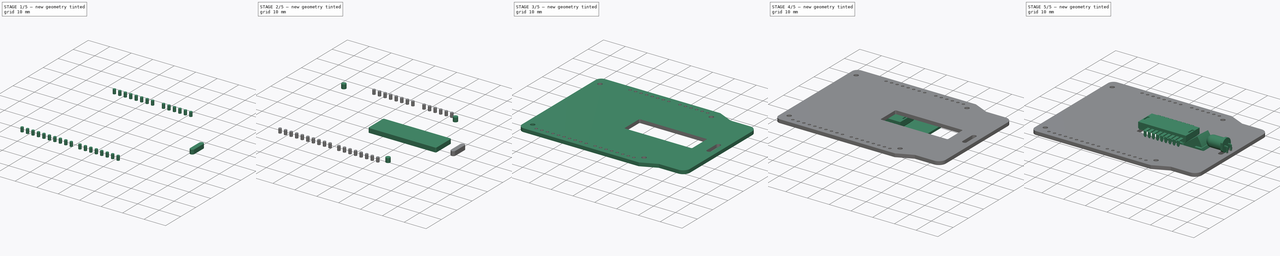
[diagram: build sequence overview — one tinted view per stage of 5, left to right]
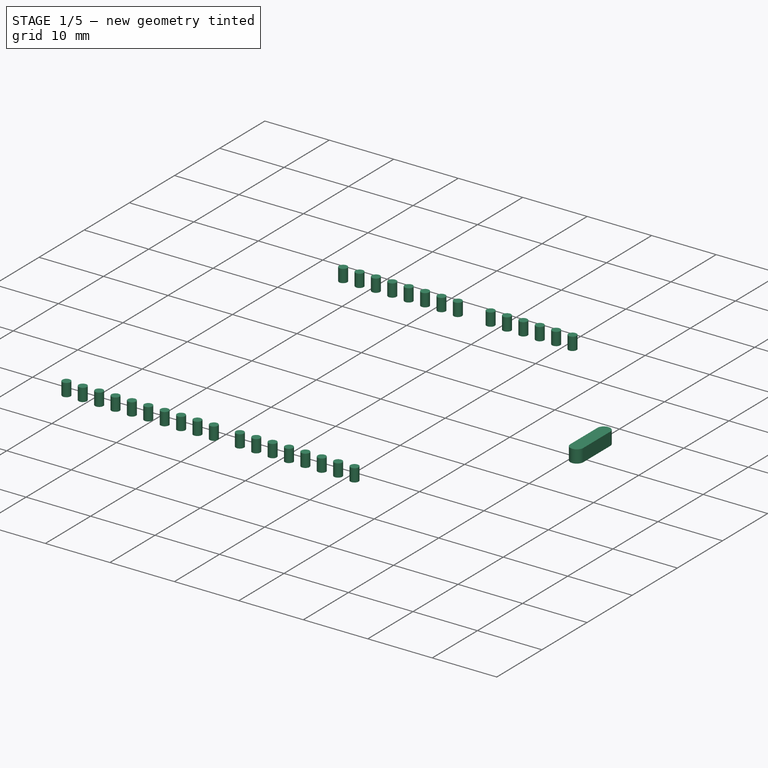
[diagram: stage 1 of 5 — iso view after this stage's code; geometry added in this stage tinted green]
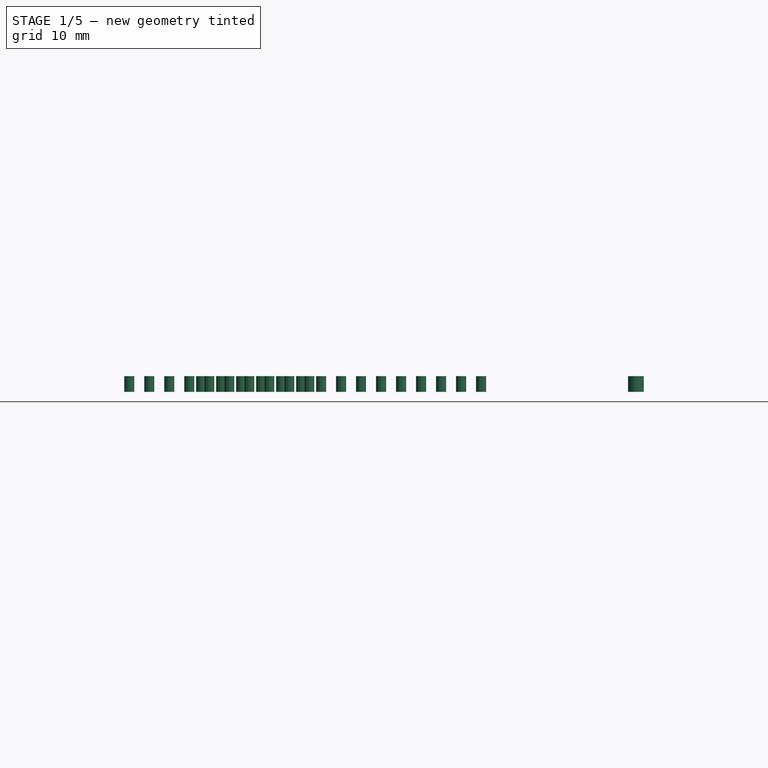
[diagram: stage 1 of 5 — front view after this stage's code; geometry added in this stage tinted green]
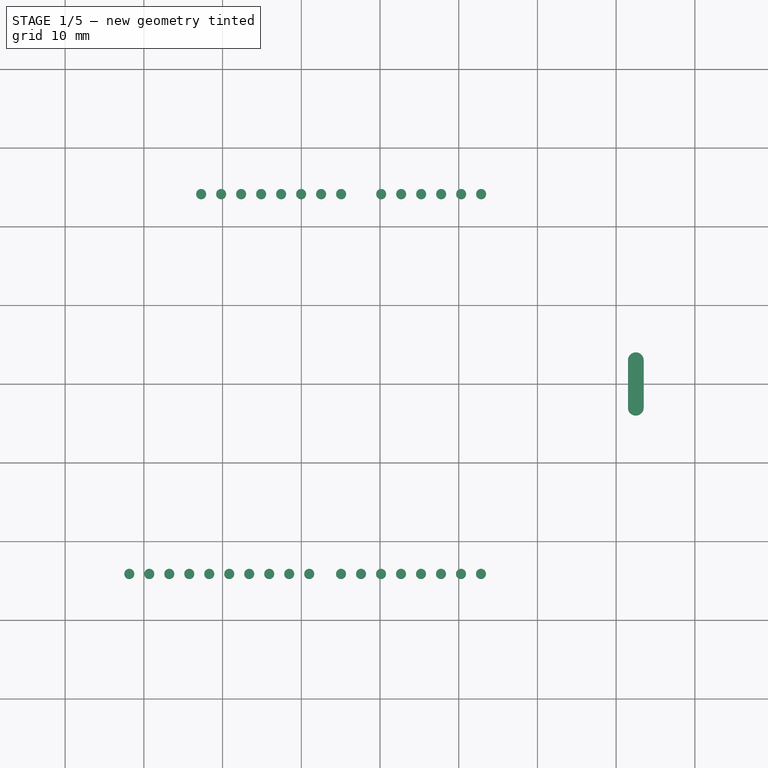
[diagram: stage 1 of 5 — top view after this stage's code; geometry added in this stage tinted green]
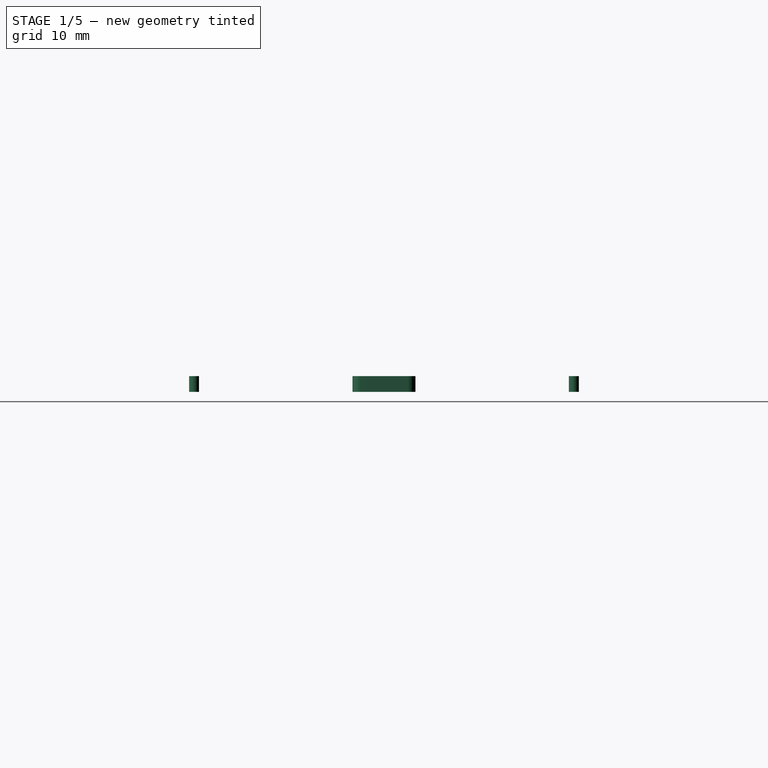
[diagram: stage 1 of 5 — right view after this stage's code; geometry added in this stage tinted green]
FCSTD DOCUMENT  (FreeCAD 0.14R3702 (Git))
Label: db01
License: CC-BY 3.0
LicenseURL: http://creativecommons.org/licenses/by/3.0/
objects: Part::Extrusion×12, Sketcher::SketchObject×11, Part::Compound×6, Part::Feature×5, Part::Cut×3, Part::MultiFuse×3
note: 40 computed .brp shape members not serialized (recipe doc carries the construction recipe); baked Part::Feature solids carry a one-line shape summary decoded from their .brp

FEATURE [Part::Extrusion] Extrude008
  Base = -> Sketch006
  Dir = (0,0,2)
  Solid = true
FEATURE [Part::Extrusion] Extrude009
  Base = -> Sketch007
  Dir = (0,0,2)
  Solid = true
FEATURE [Part::Extrusion] Extrude010
  Base = -> Sketch008
  Dir = (0,0,2)
  Solid = true
FEATURE [Part::Extrusion] Extrude011
  Base = -> Sketch009
  Dir = (0,0,2)
  Solid = true
FEATURE [Part::Extrusion] Extrude012
  Base = -> Sketch011
  Dir = (0,0,2)
  Solid = true
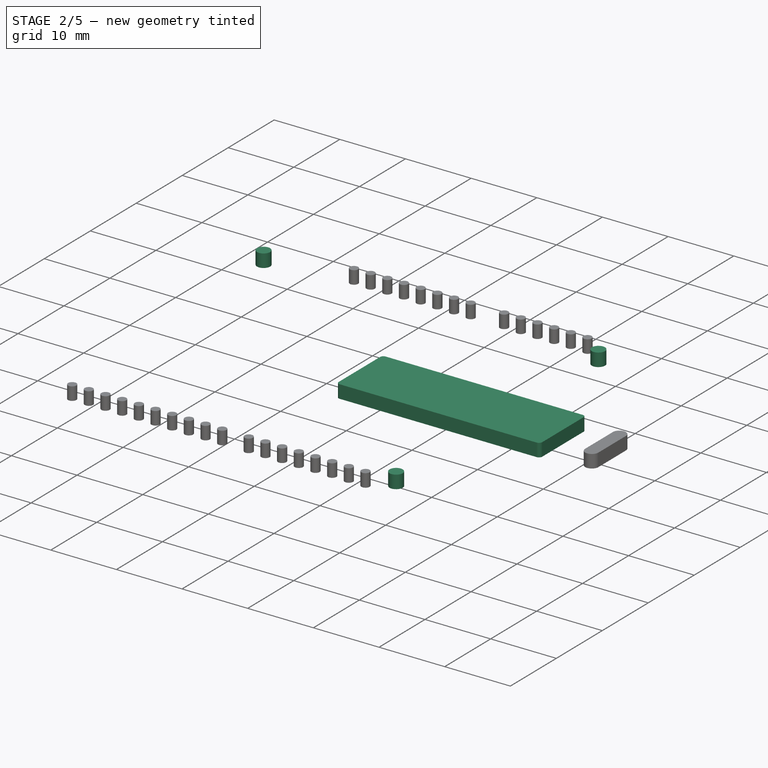
[diagram: stage 2 of 5 — iso view after this stage's code; geometry added in this stage tinted green]
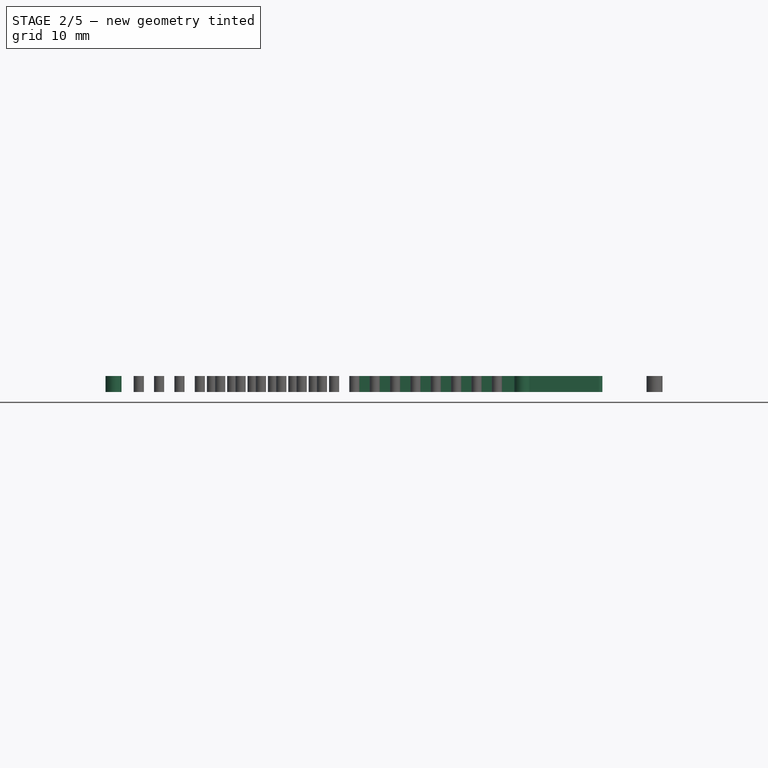
[diagram: stage 2 of 5 — front view after this stage's code; geometry added in this stage tinted green]
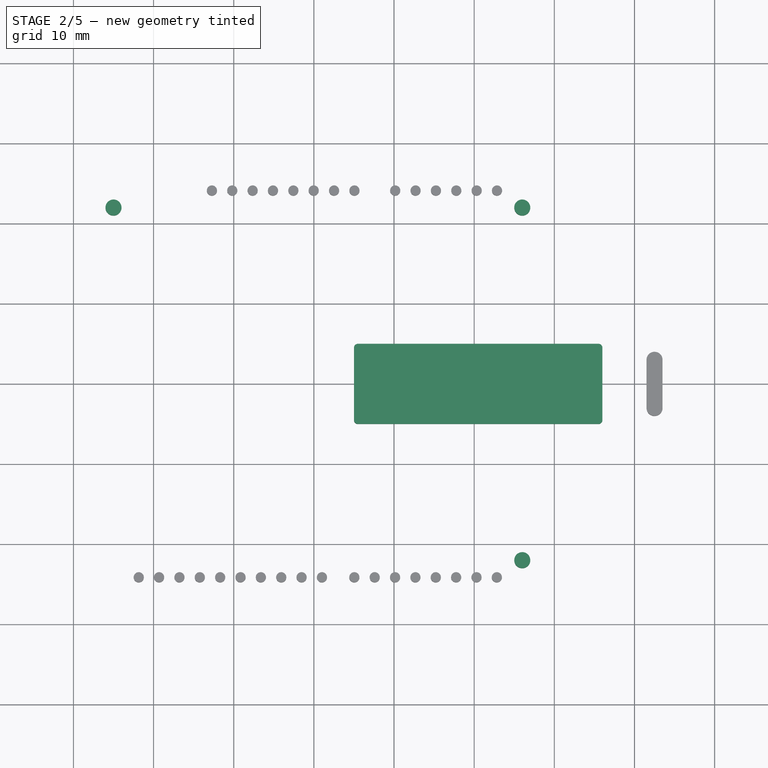
[diagram: stage 2 of 5 — top view after this stage's code; geometry added in this stage tinted green]
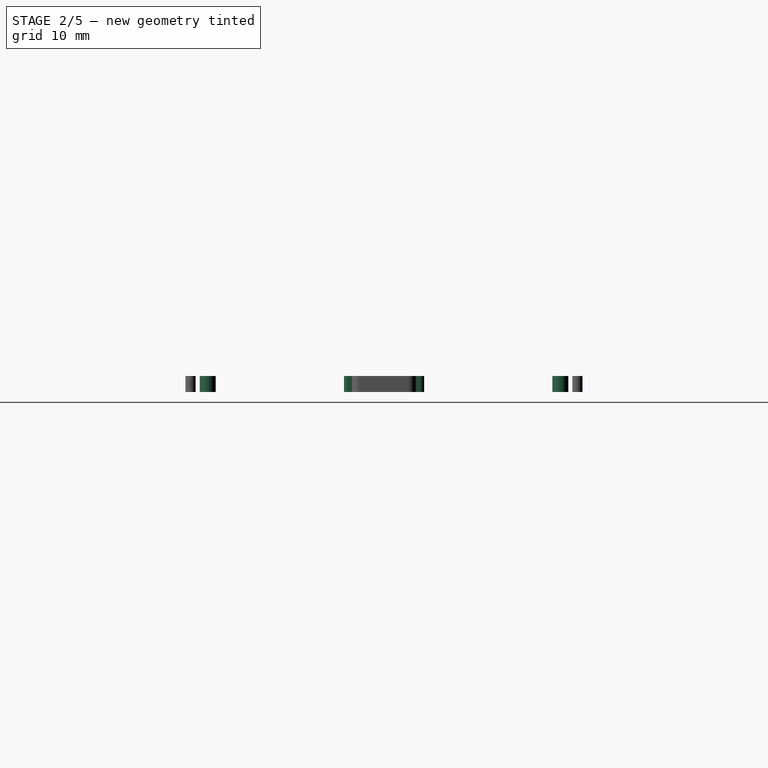
[diagram: stage 2 of 5 — right view after this stage's code; geometry added in this stage tinted green]
FEATURE [Sketcher::SketchObject] Sketch
  Placement = pos=(0,0,5) rot=(0,0,1;0rad)
  sketch-geometry (8):
    g0: ArcOfCircle CenterX=15.5 CenterY=4.5 CenterZ=0 NormalX=0 NormalY=0 NormalZ=1 Radius=0.5 StartAngle=1.5708 EndAngle=3.14159
    g1: LineSegment StartX=15 StartY=4.5 StartZ=0 EndX=15 EndY=-4.5 EndZ=0
    g2: ArcOfCircle CenterX=15.5 CenterY=-4.5 CenterZ=0 NormalX=0 NormalY=0 NormalZ=1 Radius=0.5 StartAngle=3.14159 EndAngle=4.71239
    g3: LineSegment StartX=15.5 StartY=-5 StartZ=0 EndX=45.5 EndY=-5 EndZ=0
    g4: ArcOfCircle CenterX=45.5 CenterY=-4.5 CenterZ=0 NormalX=0 NormalY=0 NormalZ=1 Radius=0.5 StartAngle=4.71239 EndAngle=6.28319
    g5: LineSegment StartX=46 StartY=-4.5 StartZ=0 EndX=46 EndY=4.5 EndZ=0
    g6: ArcOfCircle CenterX=45.5 CenterY=4.5 CenterZ=0 NormalX=0 NormalY=0 NormalZ=1 Radius=0.5 StartAngle=0 EndAngle=1.5708
    g7: LineSegment StartX=15.5 StartY=5 StartZ=0 EndX=45.5 EndY=5 EndZ=0
  constraints (13):
    c: Coincident(g1,g0)
    c: Vertical(g1)
    c: Coincident(g2,g1)
    c: Coincident(g3,g2)
    c: Horizontal(g3)
    c: Coincident(g4,g3)
    c: Coincident(g5,g4)
    c: Vertical(g5)
    c: Coincident(g6,g5)
    c: Coincident(g7,g0)
    c: Coincident(g7,g6)
    c: Horizontal(g7)
    c: Tangent(g7,g6)
FEATURE [Sketcher::SketchObject] Sketch011
  Placement = pos=(0,0,5) rot=(0,0,1;0rad)
  sketch-geometry (4):
    g0: ArcOfCircle CenterX=52.5 CenterY=3 CenterZ=0 NormalX=0 NormalY=0 NormalZ=1 Radius=1 StartAngle=0 EndAngle=3.14159
    g1: LineSegment StartX=53.5 StartY=3 StartZ=0 EndX=53.5 EndY=-3 EndZ=0
    g2: LineSegment StartX=51.5 StartY=3 StartZ=0 EndX=51.5 EndY=-3 EndZ=0
    g3: ArcOfCircle CenterX=52.5 CenterY=-3 CenterZ=0 NormalX=0 NormalY=0 NormalZ=1 Radius=1 StartAngle=3.14159 EndAngle=6.28319
  constraints (7):
    c: Coincident(g1,g0)
    c: Vertical(g1)
    c: Coincident(g2,g0)
    c: Vertical(g2)
    c: Tangent(g2,g0)
    c: Coincident(g3,g1)
    c: Coincident(g2,g3)
FEATURE [Part::Extrusion] Extrude002
  Base = -> Sketch
  Dir = (0,0,2)
  Solid = true
FEATURE [Part::Extrusion] Extrude005
  Base = -> Sketch002
  Dir = (0,0,2)
  Solid = true
FEATURE [Part::Extrusion] Extrude006
  Base = -> Sketch003
  Dir = (0,0,2)
  Solid = true
FEATURE [Part::Extrusion] Extrude007
  Base = -> Sketch004
  Dir = (0,0,2)
  Solid = true
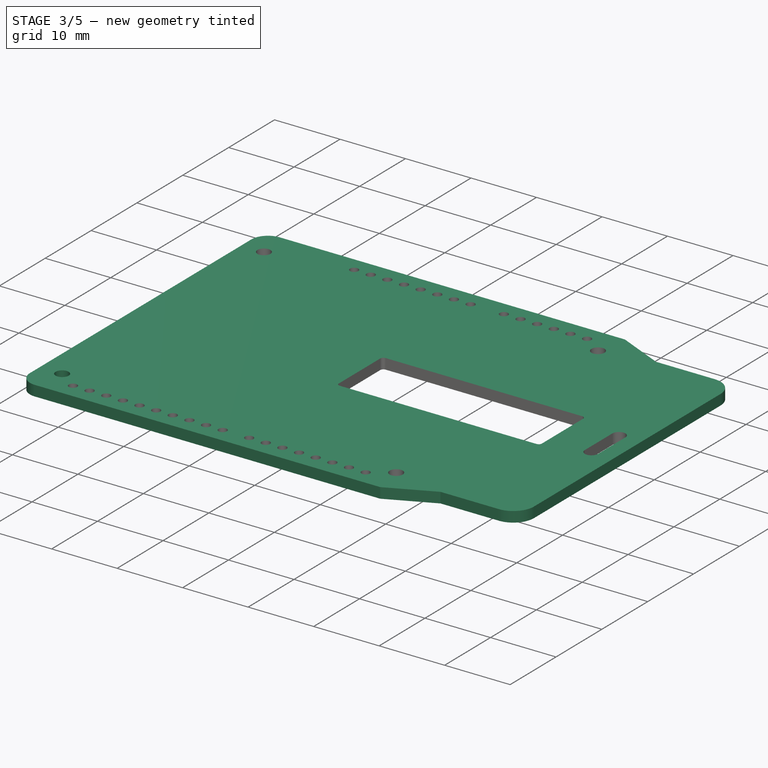
[diagram: stage 3 of 5 — iso view after this stage's code; geometry added in this stage tinted green]
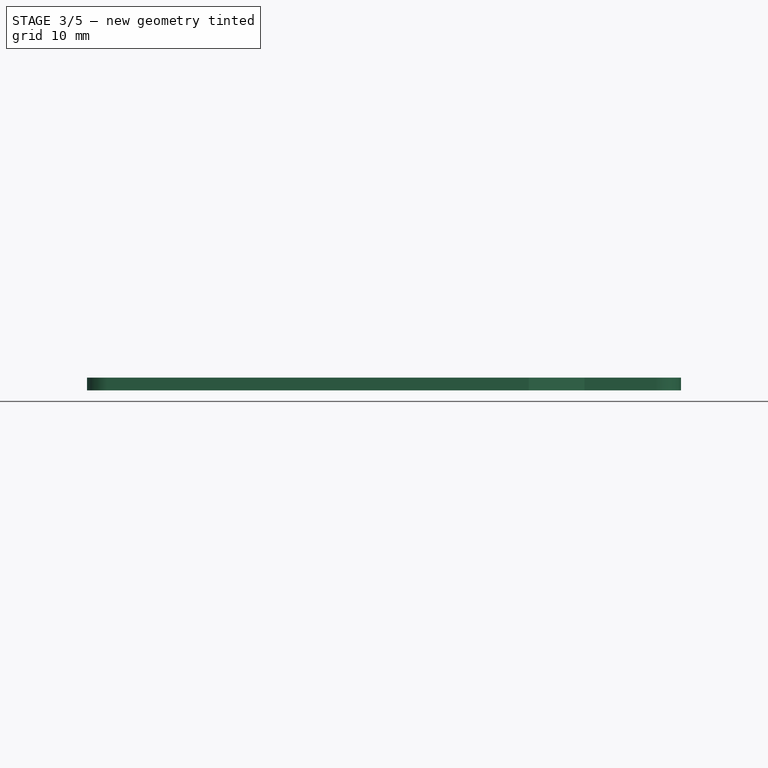
[diagram: stage 3 of 5 — front view after this stage's code; geometry added in this stage tinted green]
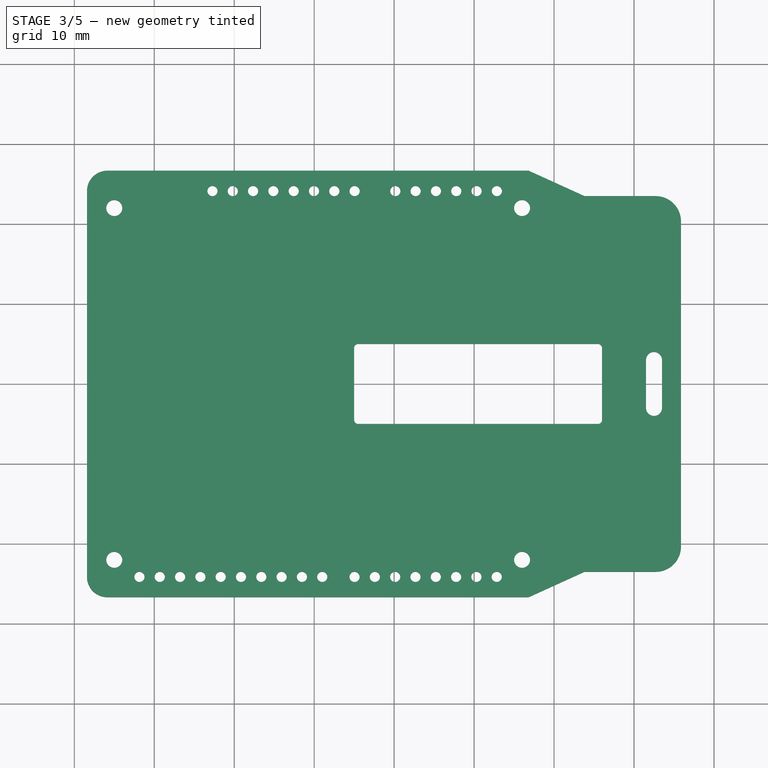
[diagram: stage 3 of 5 — top view after this stage's code; geometry added in this stage tinted green]
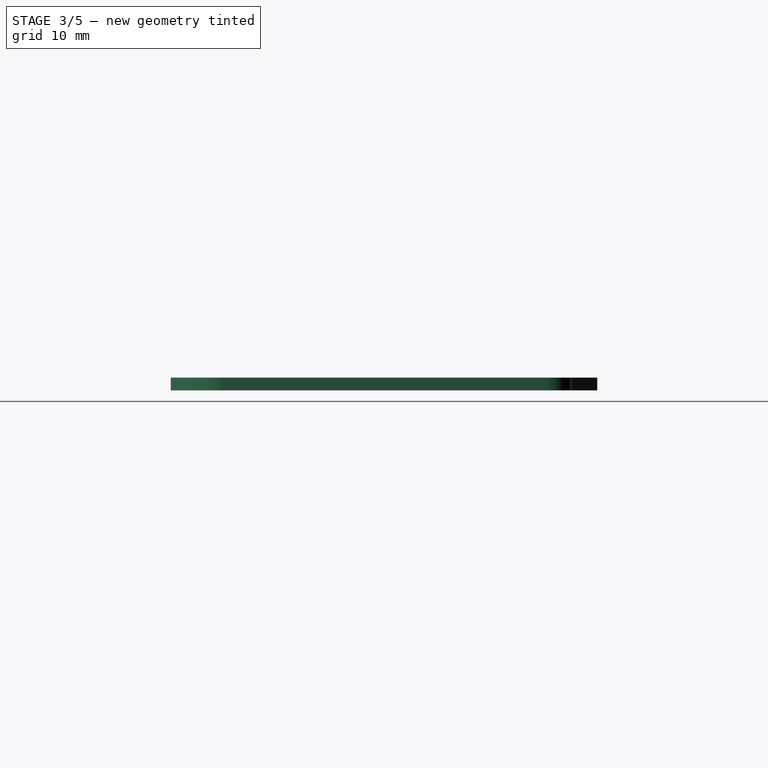
[diagram: stage 3 of 5 — right view after this stage's code; geometry added in this stage tinted green]
FEATURE [Part::Feature] arduino_uno
  Placement = pos=(49.03,50.77,0) rot=(0,0.707107,0.707107;3.14159rad)
  shape: bbox 15.24 x 2.41 x 10.55 mm, 210 faces, 0 solids (baked)
FEATURE [Part::Feature] arduino_uno001
  Placement = pos=(31.23,50.77,0) rot=(0,0.707107,0.707107;3.14159rad)
  shape: bbox 20.32 x 2.41 x 10.55 mm, 278 faces, 0 solids (baked)
FEATURE [Part::Feature] arduino_uno002
  Placement = pos=(49,2.54,0) rot=(0,0.707107,0.707107;3.14159rad)
  shape: bbox 20.32 x 2.41 x 10.55 mm, 278 faces, 0 solids (baked)
FEATURE [Part::Feature] arduino_uno003
  Placement = pos=(27.204,2.535,0) rot=(0,0.707107,0.707107;3.14159rad)
  shape: bbox 25.4 x 2.41 x 10.55 mm, 346 faces, 0 solids (baked)
FEATURE [Part::Compound] Compound007  label="kitt-db01.socket"
  Links = -> [arduino_uno003,arduino_uno001,arduino_uno002,arduino_uno]
  Placement = pos=(-16.21,-26.65,6.6) rot=(0,0,1;0rad)
FEATURE [Sketcher::SketchObject] Sketch001
  Placement = pos=(-15,-22,5) rot=(0,0,1;0rad)
  sketch-geometry (1):
    g0: Circle CenterX=0 CenterY=0 CenterZ=0 NormalX=0 NormalY=0 NormalZ=1 Radius=1
FEATURE [Sketcher::SketchObject] Sketch002
  Placement = pos=(36,22,5) rot=(0,0,1;0rad)
  sketch-geometry (1):
    g0: Circle CenterX=0 CenterY=0 CenterZ=0 NormalX=0 NormalY=0 NormalZ=1 Radius=1
FEATURE [Sketcher::SketchObject] Sketch003
  Placement = pos=(-15,22,5) rot=(0,0,1;0rad)
  sketch-geometry (1):
    g0: Circle CenterX=0 CenterY=0 CenterZ=0 NormalX=0 NormalY=0 NormalZ=1 Radius=1
FEATURE [Sketcher::SketchObject] Sketch004
  Placement = pos=(36,-22,5) rot=(0,0,1;0rad)
  sketch-geometry (1):
    g0: Circle CenterX=0 CenterY=0 CenterZ=0 NormalX=0 NormalY=0 NormalZ=1 Radius=1
FEATURE [Sketcher::SketchObject] Sketch006
  Placement = pos=(-15.42,-26.04,5) rot=(0,0,1;0rad)
  sketch-geometry (8):
    g0: Circle CenterX=12.7 CenterY=50.165 CenterZ=0 NormalX=0 NormalY=0 NormalZ=1 Radius=0.635
    g1: Circle CenterX=15.24 CenterY=50.165 CenterZ=0 NormalX=0 NormalY=0 NormalZ=1 Radius=0.635
    g2: Circle CenterX=17.78 CenterY=50.165 CenterZ=0 NormalX=0 NormalY=0 NormalZ=1 Radius=0.635
    g3: Circle CenterX=20.32 CenterY=50.165 CenterZ=0 NormalX=0 NormalY=0 NormalZ=1 Radius=0.635
    g4: Circle CenterX=22.86 CenterY=50.165 CenterZ=0 NormalX=0 NormalY=0 NormalZ=1 Radius=0.635
    g5: Circle CenterX=25.4 CenterY=50.165 CenterZ=0 NormalX=0 NormalY=0 NormalZ=1 Radius=0.635
    g6: Circle CenterX=27.94 CenterY=50.165 CenterZ=0 NormalX=0 NormalY=0 NormalZ=1 Radius=0.635
    g7: Circle CenterX=30.48 CenterY=50.165 CenterZ=0 NormalX=0 NormalY=0 NormalZ=1 Radius=0.635
FEATURE [Sketcher::SketchObject] Sketch007
  Placement = pos=(7.43,-74.3,5) rot=(0,0,1;0rad)
  sketch-geometry (8):
    g0: Circle CenterX=10.16 CenterY=50.165 CenterZ=0 NormalX=0 NormalY=0 NormalZ=1 Radius=0.635
    g1: Circle CenterX=7.62 CenterY=50.165 CenterZ=0 NormalX=0 NormalY=0 NormalZ=1 Radius=0.635
    g2: Circle CenterX=12.7 CenterY=50.165 CenterZ=0 NormalX=0 NormalY=0 NormalZ=1 Radius=0.635
    g3: Circle CenterX=15.24 CenterY=50.165 CenterZ=0 NormalX=0 NormalY=0 NormalZ=1 Radius=0.635
    g4: Circle CenterX=17.78 CenterY=50.165 CenterZ=0 NormalX=0 NormalY=0 NormalZ=1 Radius=0.635
    g5: Circle CenterX=20.32 CenterY=50.165 CenterZ=0 NormalX=0 NormalY=0 NormalZ=1 Radius=0.635
    g6: Circle CenterX=22.86 CenterY=50.165 CenterZ=0 NormalX=0 NormalY=0 NormalZ=1 Radius=0.635
    g7: Circle CenterX=25.4 CenterY=50.165 CenterZ=0 NormalX=0 NormalY=0 NormalZ=1 Radius=0.635
FEATURE [Sketcher::SketchObject] Sketch008
  Placement = pos=(-19.47,-74.3,5) rot=(0,0,1;0rad)
  sketch-geometry (10):
    g0: Circle CenterX=10.16 CenterY=50.165 CenterZ=0 NormalX=0 NormalY=0 NormalZ=1 Radius=0.635
    g1: Circle CenterX=7.62 CenterY=50.165 CenterZ=0 NormalX=0 NormalY=0 NormalZ=1 Radius=0.635
    g2: Circle CenterX=12.7 CenterY=50.165 CenterZ=0 NormalX=0 NormalY=0 NormalZ=1 Radius=0.635
    g3: Circle CenterX=15.24 CenterY=50.165 CenterZ=0 NormalX=0 NormalY=0 NormalZ=1 Radius=0.635
    g4: Circle CenterX=17.78 CenterY=50.165 CenterZ=0 NormalX=0 NormalY=0 NormalZ=1 Radius=0.635
    g5: Circle CenterX=20.32 CenterY=50.165 CenterZ=0 NormalX=0 NormalY=0 NormalZ=1 Radius=0.635
    g6: Circle CenterX=22.86 CenterY=50.165 CenterZ=0 NormalX=0 NormalY=0 NormalZ=1 Radius=0.635
    g7: Circle CenterX=25.4 CenterY=50.165 CenterZ=0 NormalX=0 NormalY=0 NormalZ=1 Radius=0.635
    g8: Circle CenterX=27.94 CenterY=50.165 CenterZ=0 NormalX=0 NormalY=0 NormalZ=1 Radius=0.635
    g9: Circle CenterX=30.48 CenterY=50.165 CenterZ=0 NormalX=0 NormalY=0 NormalZ=1 Radius=0.635
FEATURE [Sketcher::SketchObject] Sketch009
  Placement = pos=(7.45,-26.04,5) rot=(0,0,1;0rad)
  sketch-geometry (6):
    g0: Circle CenterX=12.7 CenterY=50.165 CenterZ=0 NormalX=0 NormalY=0 NormalZ=1 Radius=0.635
    g1: Circle CenterX=15.24 CenterY=50.165 CenterZ=0 NormalX=0 NormalY=0 NormalZ=1 Radius=0.635
    g2: Circle CenterX=17.78 CenterY=50.165 CenterZ=0 NormalX=0 NormalY=0 NormalZ=1 Radius=0.635
    g3: Circle CenterX=20.32 CenterY=50.165 CenterZ=0 NormalX=0 NormalY=0 NormalZ=1 Radius=0.635
    g4: Circle CenterX=22.86 CenterY=50.165 CenterZ=0 NormalX=0 NormalY=0 NormalZ=1 Radius=0.635
    g5: Circle CenterX=25.4 CenterY=50.165 CenterZ=0 NormalX=0 NormalY=0 NormalZ=1 Radius=0.635
FEATURE [Sketcher::SketchObject] Sketch010
  Placement = pos=(0,0,5) rot=(0,0,1;0rad)
  sketch-geometry (12):
    g0: LineSegment StartX=36.83 StartY=-26.67 StartZ=0 EndX=-15.875 EndY=-26.67 EndZ=0
    g1: ArcOfCircle CenterX=-15.875 CenterY=-24.13 CenterZ=0 NormalX=0 NormalY=0 NormalZ=1 Radius=2.54 StartAngle=3.14159 EndAngle=4.71239
    g2: LineSegment StartX=-18.415 StartY=-24.13 StartZ=0 EndX=-18.415 EndY=24.13 EndZ=0
    g3: ArcOfCircle CenterX=-15.875 CenterY=24.13 CenterZ=0 NormalX=0 NormalY=0 NormalZ=1 Radius=2.54 StartAngle=1.5708 EndAngle=3.14159
    g4: LineSegment StartX=36.83 StartY=-26.67 StartZ=0 EndX=43.815 EndY=-23.495 EndZ=0
    g5: LineSegment StartX=43.815 StartY=-23.495 StartZ=0 EndX=52.705 EndY=-23.495 EndZ=0
    g6: ArcOfCircle CenterX=52.705 CenterY=-20.32 CenterZ=0 NormalX=0 NormalY=0 NormalZ=1 Radius=3.175 StartAngle=4.71239 EndAngle=6.28319
    g7: LineSegment StartX=55.88 StartY=-20.32 StartZ=0 EndX=55.88 EndY=20.32 EndZ=0
    g8: ArcOfCircle CenterX=52.705 CenterY=20.32 CenterZ=0 NormalX=0 NormalY=0 NormalZ=1 Radius=3.175 StartAngle=0 EndAngle=1.5708
    g9: LineSegment StartX=52.705 StartY=23.495 StartZ=0 EndX=43.815 EndY=23.495 EndZ=0
    g10: LineSegment StartX=43.815 StartY=23.495 StartZ=0 EndX=36.83 EndY=26.67 EndZ=0
    g11: LineSegment StartX=36.83 StartY=26.67 StartZ=0 EndX=-15.875 EndY=26.67 EndZ=0
  constraints (17):
    c: Horizontal(g0)
    c: Coincident(g1,g0)
    c: Coincident(g2,g1)
    c: Vertical(g2)
    c: Coincident(g3,g2)
    c: Coincident(g4,g0)
    c: Coincident(g5,g4)
    c: Horizontal(g5)
    c: Coincident(g6,g5)
    c: Coincident(g7,g6)
    c: Vertical(g7)
    c: Coincident(g8,g7)
    c: Coincident(g10,g9)
    c: Coincident(g11,g10)
    c: Coincident(g11,g3)
    c: Horizontal(g11)
    c: Coincident(g8,g9)
FEATURE [Part::Extrusion] Extrude001
  Base = -> Sketch010
  Dir = (0,0,1.6)
  Solid = true
FEATURE [Part::Extrusion] Extrude004
  Base = -> Sketch001
  Dir = (0,0,2)
  Solid = true
FEATURE [Part::MultiFuse] Fusion001
  Shapes = -> [Extrude002,Extrude009,Extrude006,Extrude005,Extrude008,Extrude007,Extrude010,Extrude011]
FEATURE [Part::MultiFuse] Fusion002
  Shapes = -> [Extrude004,Extrude012,Fusion001]
FEATURE [Part::Cut] Cut003  label="kitt-db01.pcb"
  Base = -> Extrude001
  Tool = -> Fusion002
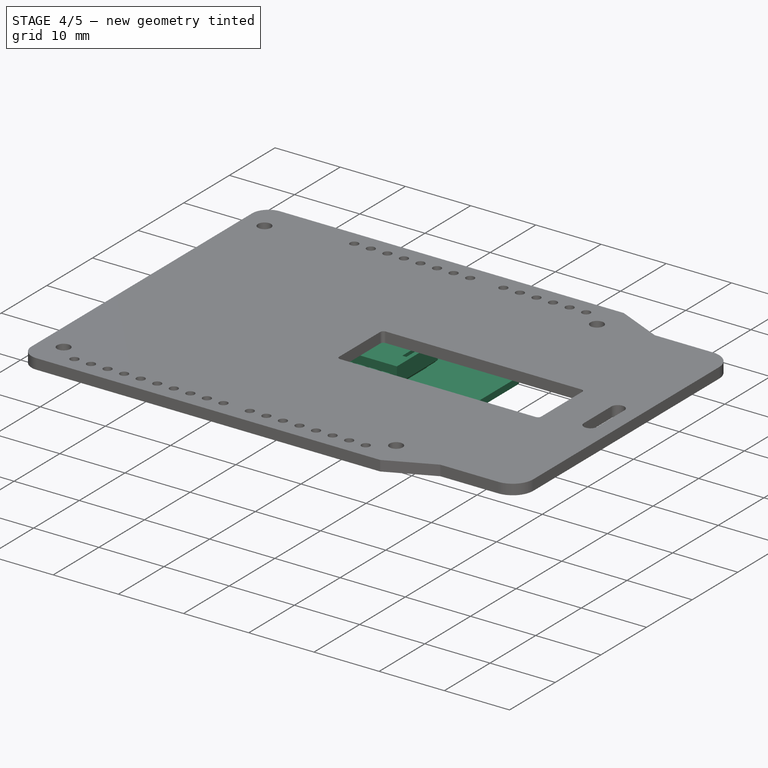
[diagram: stage 4 of 5 — iso view after this stage's code; geometry added in this stage tinted green]
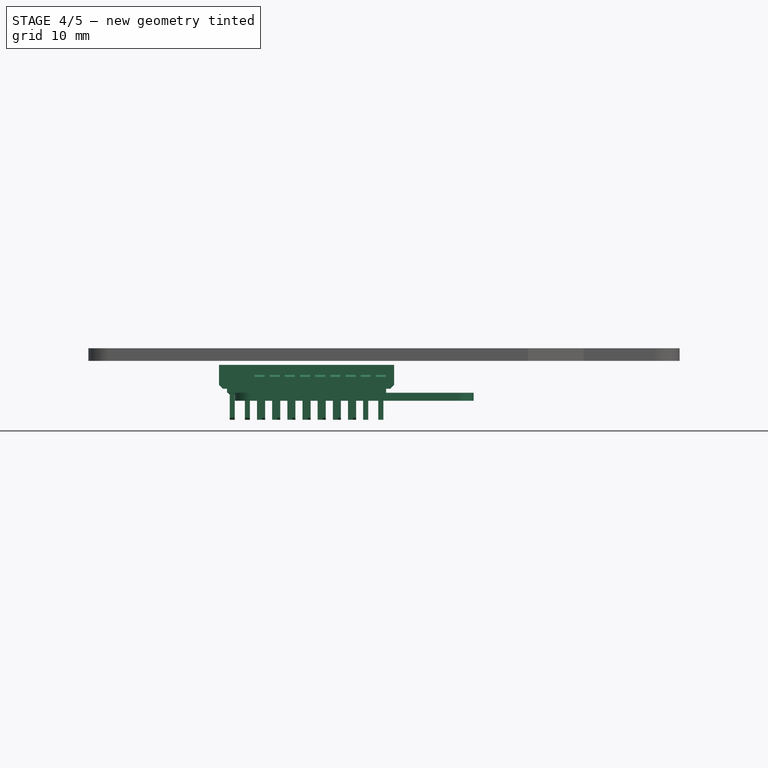
[diagram: stage 4 of 5 — front view after this stage's code; geometry added in this stage tinted green]
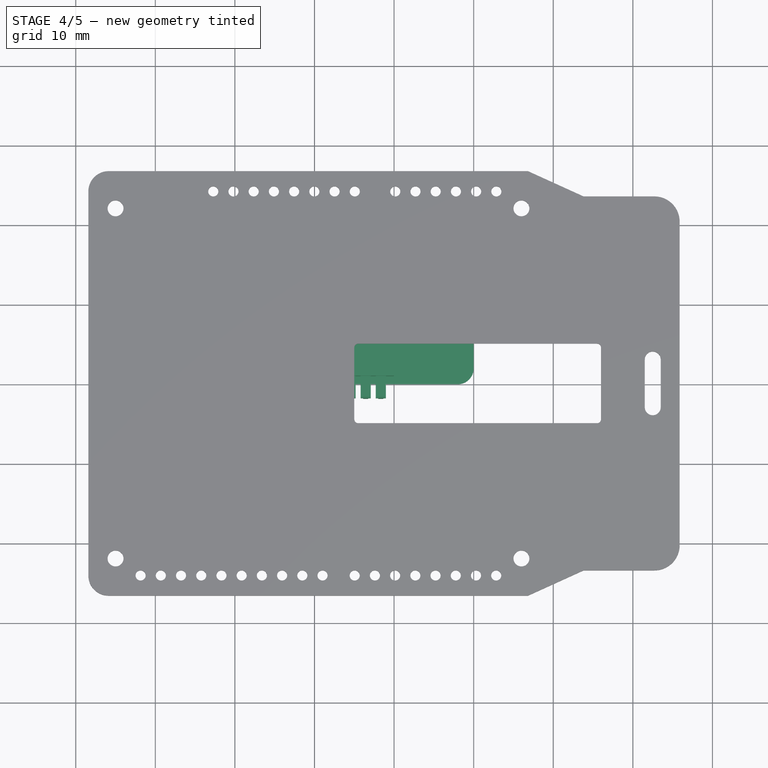
[diagram: stage 4 of 5 — top view after this stage's code; geometry added in this stage tinted green]
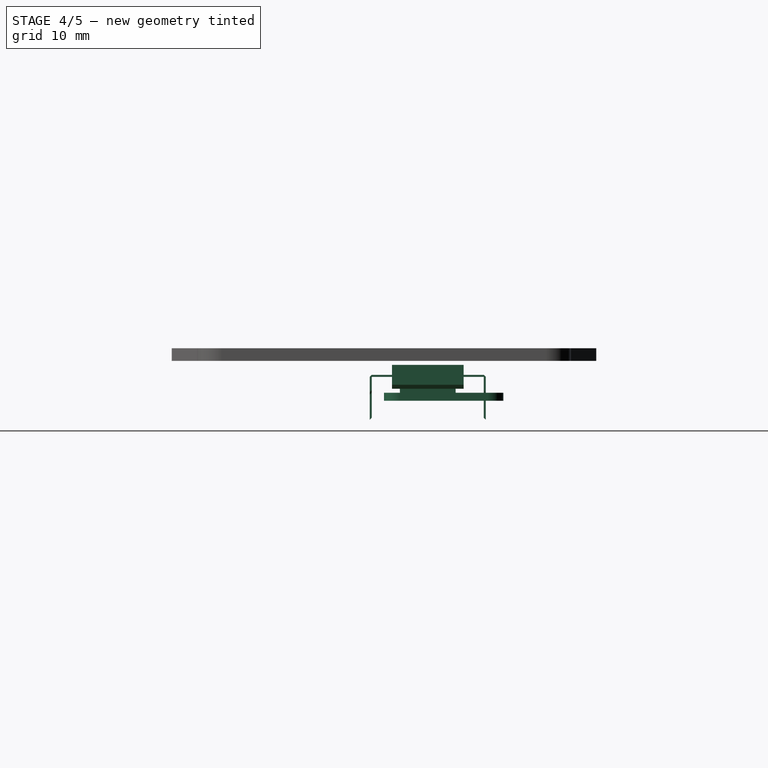
[diagram: stage 4 of 5 — right view after this stage's code; geometry added in this stage tinted green]
FEATURE [Part::Compound] Compound001  label="pins002"
  Placement = pos=(19,11,0) rot=(0,0,1;3.14159rad)
FEATURE [Part::Compound] Compound002  label="pins001"
  Placement = pos=(-1,0,0) rot=(0,0,1;0rad)
FEATURE [Part::MultiFuse] Fusion  label="body"
FEATURE [Part::Extrusion] Extrude  label="OpticsBase001"
  Dir = (0,0,1)
  Solid = true
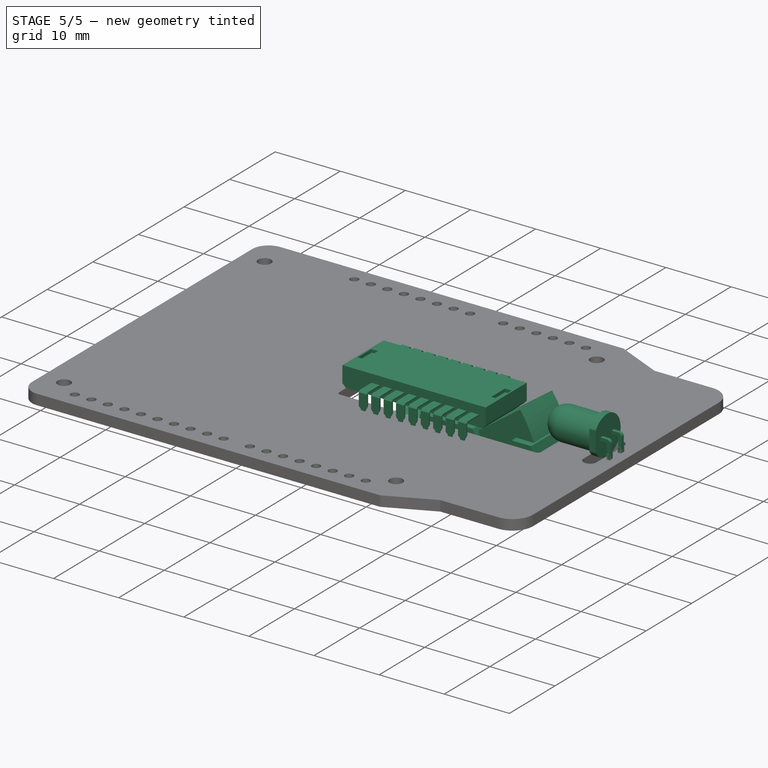
[diagram: stage 5 of 5 — iso view after this stage's code; geometry added in this stage tinted green]
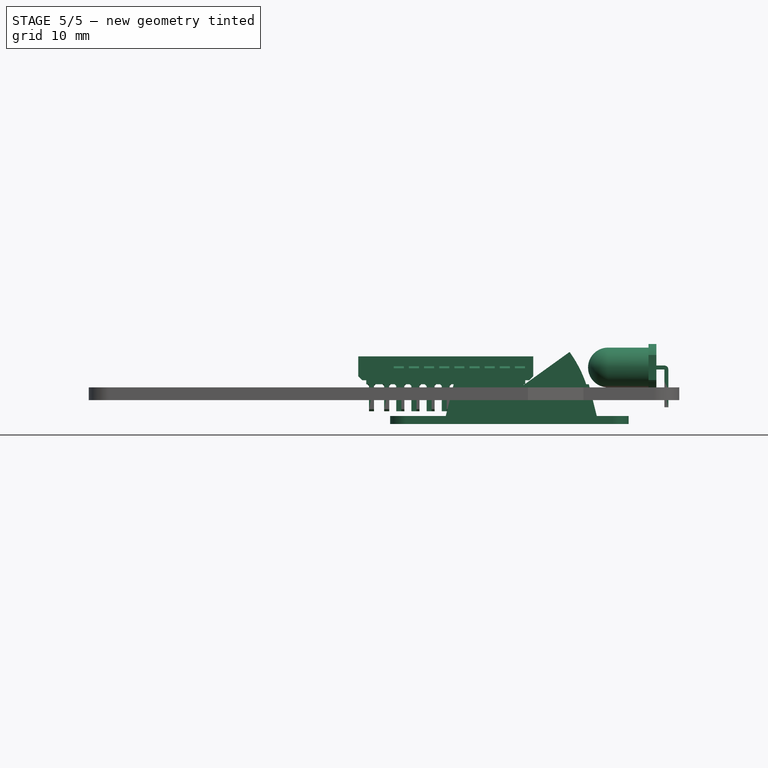
[diagram: stage 5 of 5 — front view after this stage's code; geometry added in this stage tinted green]
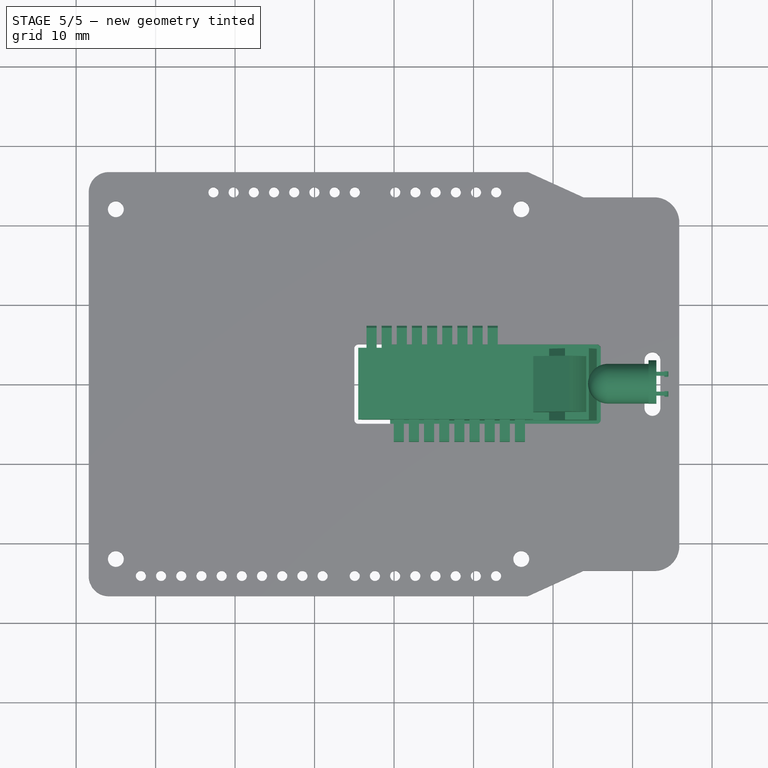
[diagram: stage 5 of 5 — top view after this stage's code; geometry added in this stage tinted green]
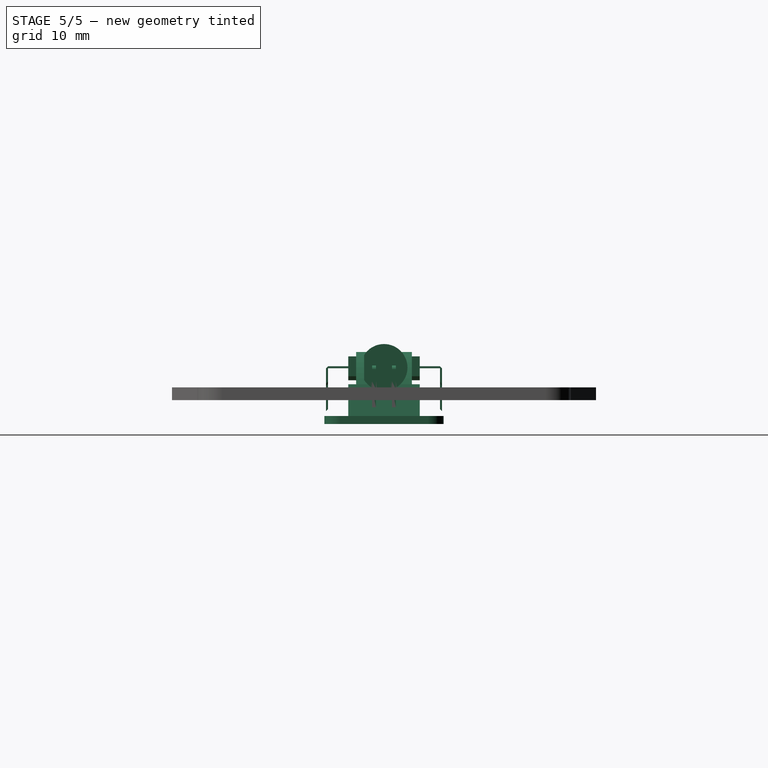
[diagram: stage 5 of 5 — right view after this stage's code; geometry added in this stage tinted green]
FEATURE [Part::Cut] Cut
FEATURE [Part::Cut] Cut001  label="PrismS005"
FEATURE [Part::Compound] Compound004  label="ADNS3080"
  Links = -> [Fusion,Compound002,Compound001]
  Placement = pos=(35.5,5.5,6) rot=(0,0,1;3.14159rad)
FEATURE [Part::Feature] Part__Feature  label="5mm LED"
  Placement = pos=(54.5,0,8.5) rot=(0,0,1;1.5708rad)
  shape: bbox 8.6 x 5.45 x 5.9 mm, 8 faces (baked)
FEATURE [Part::Compound] Compound003  label="led5mm-90deg!cut"
  Links = -> [Part__Feature,Cut]
  Placement = pos=(-1.5,0,0.6) rot=(0,0,1;0rad)
FEATURE [Part::Compound] Compound  label="ADNS2120"
  Links = -> [Extrude,Cut001]
  Placement = pos=(49.5,7.5,2) rot=(0,0,1;3.14159rad)
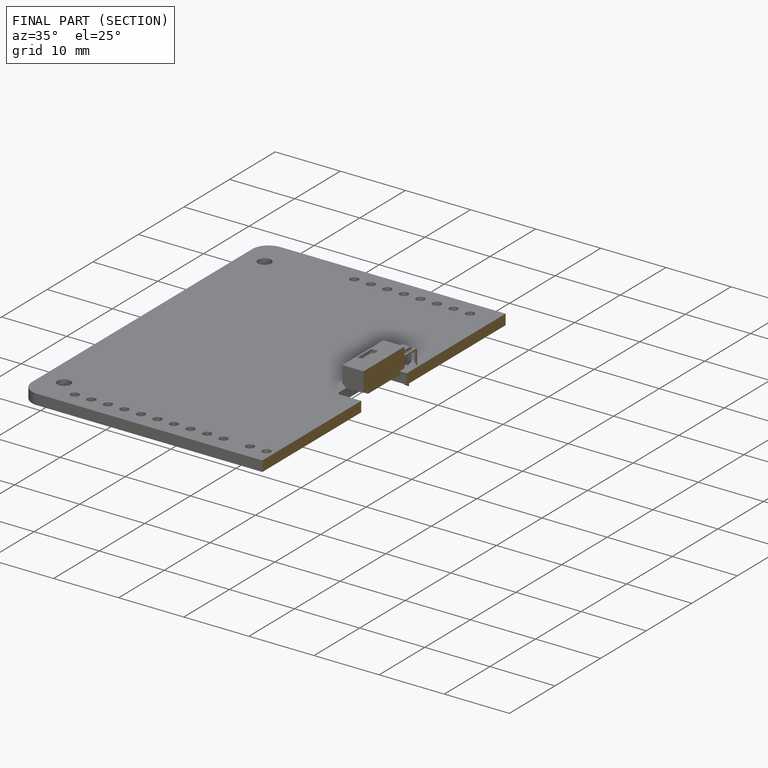
[diagram: finished part — half-section view (interior)]
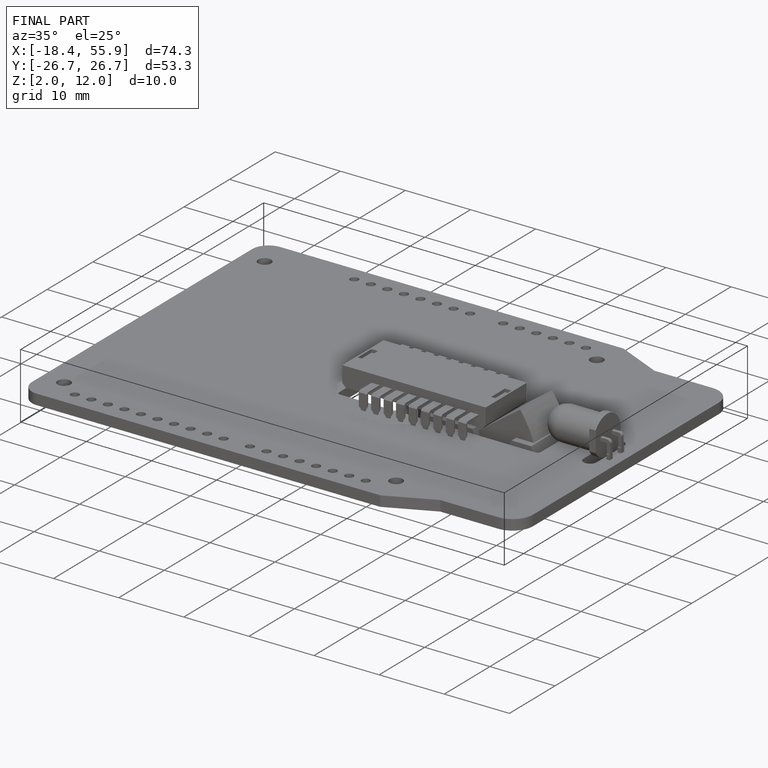
[diagram: finished part — iso view with bounding-box wireframe]
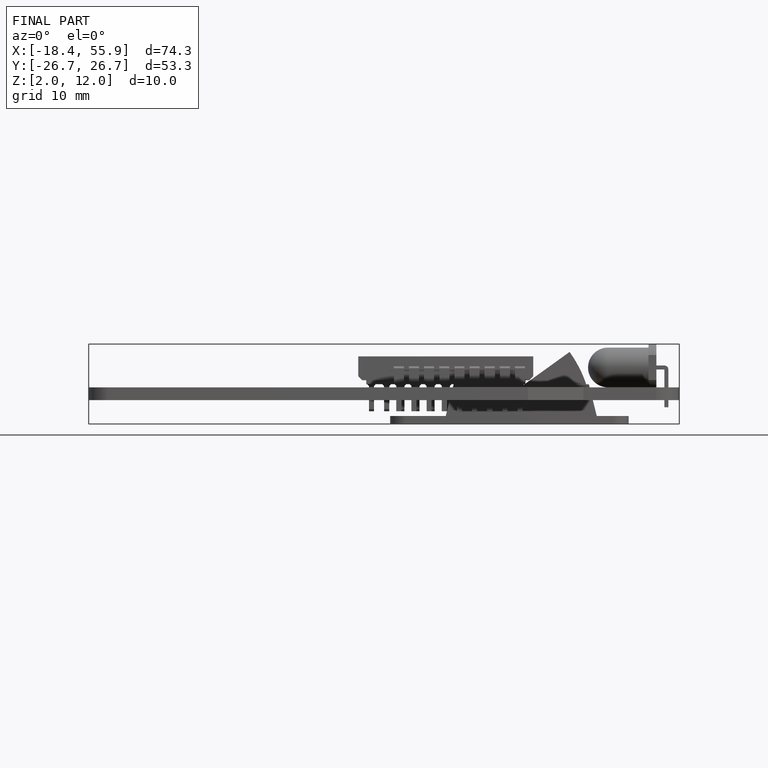
[diagram: finished part — front view with bounding-box wireframe]
